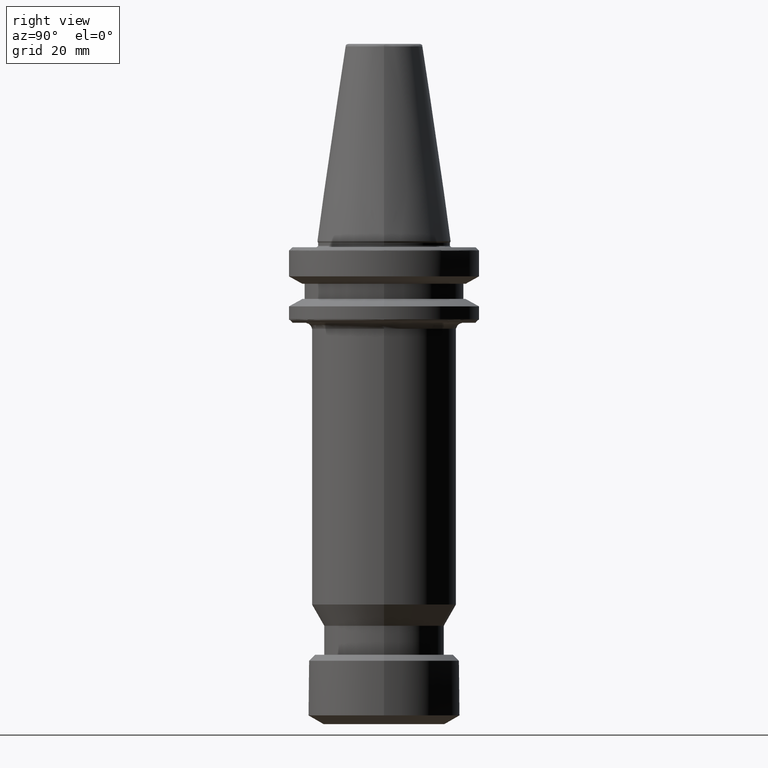
[diagram: clean part render]
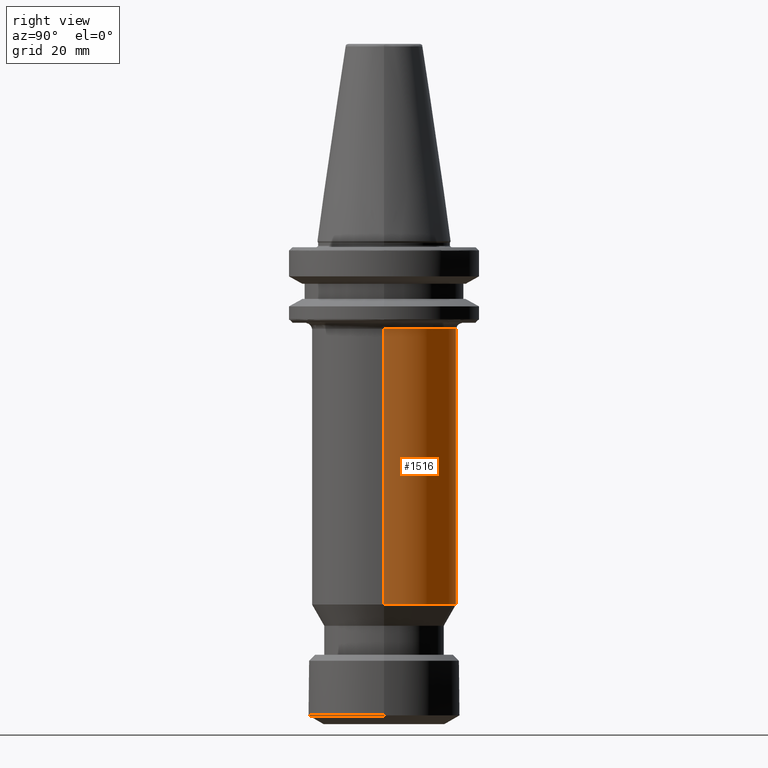
[diagram: same view with one face highlighted and labeled with its STEP entity id]
A machine part, right view. The second image highlights one B-rep face of the part: STEP entity #1516.
In plain terms, the highlighted cylindrical surface (partial cylindrical patch) has radius 24 mm, axis along (0, -0, 1).
Its self-contained STEP definition (entity closure, byte-faithful):
#21 = DIRECTION ( 'NONE',  ( 0.0000000000000000000, -0.0000000000000000000, 1.000000000000000000 ) ) ;
#27 = VECTOR ( 'NONE', #1534, 1000.000000000000000 ) ;
#270 = CARTESIAN_POINT ( 'NONE',  ( 0.0000000000000000000, 0.0000000000000000000, -120.3851942289999600 ) ) ;
#292 = DIRECTION ( 'NONE',  ( 0.0000000000000000000, 0.0000000000000000000, 1.000000000000000000 ) ) ;
#306 = DIRECTION ( 'NONE',  ( 1.000000000000000000, 0.0000000000000000000, -2.312964634635742700E-015 ) ) ;
#381 = CIRCLE ( 'NONE', #1873, 24.00000000000000000 ) ;
#434 = CARTESIAN_POINT ( 'NONE',  ( 23.99999999992037700, -2.155047082289592700E-009, -28.99999999972065700 ) ) ;
#511 = CARTESIAN_POINT ( 'NONE',  ( 24.00000000000000000, 0.0000000000000000000, -120.3851942290000200 ) ) ;
#592 = FACE_OUTER_BOUND ( 'NONE', #2739, .T. ) ;
#637 = CYLINDRICAL_SURFACE ( 'NONE', #955, 24.00000000000000000 ) ;
#729 = LINE ( 'NONE', #1524, #27 ) ;
#735 = VERTEX_POINT ( 'NONE', #1166 ) ;
#763 = EDGE_CURVE ( 'NONE', #1368, #1932, #2035, .T. ) ;
#955 = AXIS2_PLACEMENT_3D ( 'NONE', #2574, #1942, #2577 ) ;
#984 = LINE ( 'NONE', #511, #2774 ) ;
#1025 = DIRECTION ( 'NONE',  ( 0.0000000000000000000, 0.0000000000000000000, 1.000000000000000000 ) ) ;
#1033 = CARTESIAN_POINT ( 'NONE',  ( 0.0000000000000000000, 0.0000000000000000000, -28.99999999999999600 ) ) ;
#1049 = DIRECTION ( 'NONE',  ( 1.000000000000000000, 0.0000000000000000000, -1.445602896647339200E-016 ) ) ;
#1166 = CARTESIAN_POINT ( 'NONE',  ( 24.00000000000000000, 0.0000000000000000000, -120.3851942290000200 ) ) ;
#1321 = EDGE_CURVE ( 'NONE', #735, #2442, #381, .T. ) ;
#1333 = CARTESIAN_POINT ( 'NONE',  ( -24.00000000000000000, 2.939152317953647900E-015, -120.3851942289999600 ) ) ;
#1368 = VERTEX_POINT ( 'NONE', #434 ) ;
#1516 = ADVANCED_FACE ( 'NONE', ( #592 ), #637, .T. ) ;
#1524 = CARTESIAN_POINT ( 'NONE',  ( -24.00000000000000000, 2.939152317953647900E-015, -120.3851942290000200 ) ) ;
#1534 = DIRECTION ( 'NONE',  ( 0.0000000000000000000, -0.0000000000000000000, 1.000000000000000000 ) ) ;
#1685 = ORIENTED_EDGE ( 'NONE', *, *, #2051, .F. ) ;
#1710 = ORIENTED_EDGE ( 'NONE', *, *, #763, .F. ) ;
#1873 = AXIS2_PLACEMENT_3D ( 'NONE', #270, #292, #306 ) ;
#1932 = VERTEX_POINT ( 'NONE', #3338 ) ;
#1942 = DIRECTION ( 'NONE',  ( 0.0000000000000000000, -0.0000000000000000000, 1.000000000000000000 ) ) ;
#2035 = CIRCLE ( 'NONE', #2578, 24.00000000000000000 ) ;
#2051 = EDGE_CURVE ( 'NONE', #735, #1368, #984, .T. ) ;
#2438 = EDGE_CURVE ( 'NONE', #2442, #1932, #729, .T. ) ;
#2442 = VERTEX_POINT ( 'NONE', #1333 ) ;
#2447 = ORIENTED_EDGE ( 'NONE', *, *, #2438, .T. ) ;
#2574 = CARTESIAN_POINT ( 'NONE',  ( 0.0000000000000000000, 0.0000000000000000000, -120.3851942290000200 ) ) ;
#2577 = DIRECTION ( 'NONE',  ( 1.000000000000000000, 0.0000000000000000000, 0.0000000000000000000 ) ) ;
#2578 = AXIS2_PLACEMENT_3D ( 'NONE', #1033, #1025, #1049 ) ;
#2739 = EDGE_LOOP ( 'NONE', ( #3356, #2447, #1710, #1685 ) ) ;
#2774 = VECTOR ( 'NONE', #21, 1000.000000000000000 ) ;
#3338 = CARTESIAN_POINT ( 'NONE',  ( -23.99999999992037700, -7.383723426551921600E-009, -28.99999999972065700 ) ) ;
#3356 = ORIENTED_EDGE ( 'NONE', *, *, #1321, .T. ) ;